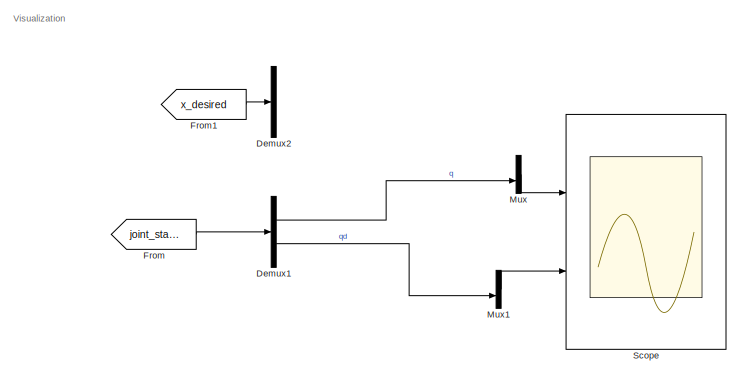
[diagram: root canvas - part 1/2, top left region]
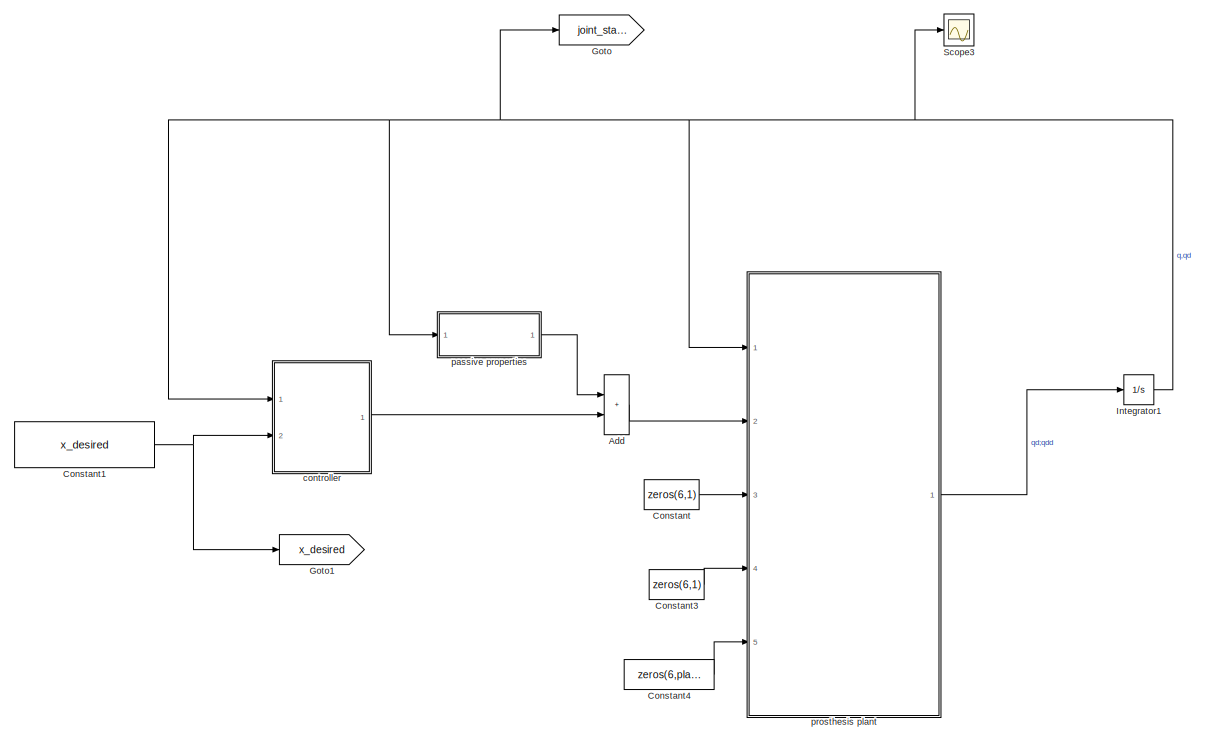
[diagram: root canvas - part 2/2, right side, full height]
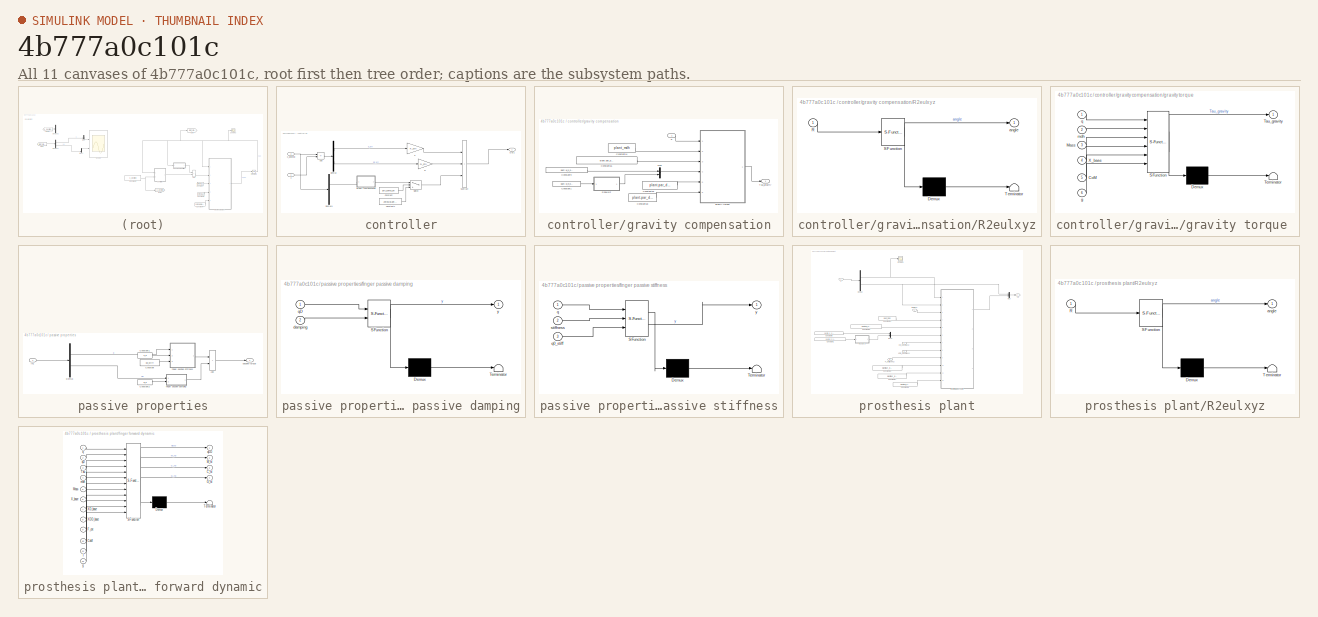
[diagram: thumbnail index - all 11 canvases of the model, root first then tree order]
MODEL slx_4b777a0c101c
KIND model
CONFIG AbsTol = auto
CONFIG EnableMultiTasking = off
CONFIG FixedStep = 1e-3
CONFIG InitFcn = plant = Dexmart_index;\nplant_mdh = mdh_struct_to_matrix(plant.mdh_ori,1);\n\n% init value for solver\nq_init = zeros(plant.nj,1);\nqD_init = zeros(plant.nj,1);\n\n% parameters for passive properties\nK_q = 1e1;% stiffness Nm/rad\nq0_stiff = [0;pi/6;pi/4;pi/6];\nD_q = 5; % Damping of joint\n\n% parameter for controller\ngrv_comp_on = 0; \nK_ctrl = 0;\nD_ctrl = 0;\n\n\n% desired x\n\nx_desired = [rand(plant.nj,1);zero...<+16ch>
CONFIG MaxStep = auto
CONFIG MinStep = auto
CONFIG RelTol = 1e-3
CONFIG SampleTimeConstraint = Unconstrained
CONFIG Solver = ode1
CONFIG SolverName = ode1
CONFIG StartTime = 0.0
CONFIG StopTime = inf
WORKSPACE source: external: MAT-File  (data not in archive)
BLOCK [Sum] Add
  IconShape = rectangular
  Ports = [2, 1]
BLOCK [Constant] Constant
  Value = zeros(6,1)
BLOCK [Constant] Constant1
  Value = x_desired
BLOCK [Constant] Constant3
  Value = zeros(6,1)
BLOCK [Constant] Constant4
  Value = zeros(6,plant.nj+2)
BLOCK [Demux] Demux1
  Outputs = [plant.nj,plant.nj]
  Ports = [1, 2]
BLOCK [Demux] Demux2
  Outputs = [plant.nj,plant.nj]
  Ports = [1, 2]
BLOCK [From] From
  GotoTag = joint_state
BLOCK [From] From1
  GotoTag = x_desired
BLOCK [Goto] Goto
  GotoTag = joint_state
BLOCK [Goto] Goto1
  GotoTag = x_desired
BLOCK [Integrator] Integrator1
  InitialCondition = [q_init;qD_init]
  Ports = [1, 1]
  WrappedStateLowerValue = -[pi,pi,pi,pi,1e4,1e4,1e4,1e4]
  WrappedStateUpperValue = [pi,pi,pi,pi,1e4,1e4,1e4,1e4]
BLOCK [Mux] Mux
  DisplayOption = bar
  Inputs = 2
  Ports = [2, 1]
BLOCK [Mux] Mux1
  DisplayOption = bar
  Inputs = 2
  Ports = [2, 1]
BLOCK [Scope] Scope
  Floating = off
  NumInputPorts = 2
  Ports = [2]
  ScopeSpecificationString = Simulink.scopes.TimeScopeBlockCfg('CurrentConfiguration', extmgr.ConfigurationSet(extmgr.Configuration('Core','General UI',true),extmgr.Configuration('Core','Source UI',true),extmgr.Configuration('Sources','WiredSimulink',true,'DataLoggingVariableName','ScopeData1'),extmgr.Configuration('Visuals','Time Domain',true,'SerializedDisplays',{struct('MinYLimReal','-0.10464','MaxYLimReal','0.89058','YLab...<+2060ch>
BLOCK [Scope] Scope3
  Floating = off
  NumInputPorts = 1
  Ports = [1]
  ScopeSpecificationString = Simulink.scopes.TimeScopeBlockCfg('CurrentConfiguration', extmgr.ConfigurationSet(extmgr.Configuration('Core','General UI',true),extmgr.Configuration('Core','Source UI',true),extmgr.Configuration('Sources','WiredSimulink',true,'DataLoggingVariableName','ScopeData2'),extmgr.Configuration('Visuals','Time Domain',true,'SerializedDisplays',{struct('MinYLimReal','-0.26832','MaxYLimReal','1.16476','YLab...<+1483ch>
BLOCK [SubSystem] controller
  Ports = [2, 1]
BLOCK [Sum] controller/Add
  IconShape = rectangular
  Inputs = +-
  Ports = [2, 1]
BLOCK [Constant] controller/Constant
  Value = grv_comp_on
BLOCK [Constant] controller/Constant1
  Value = zeros(plant.nj,1)
BLOCK [Gain] controller/D
  Gain = D_ctrl
BLOCK [Demux] controller/Demux
  Outputs = [plant.nj,plant.nj]
  Ports = [1, 2]
BLOCK [Demux] controller/Demux1
  Outputs = [plant.nj,plant.nj]
  Ports = [1, 2]
BLOCK [Gain] controller/K
  Gain = K_ctrl
BLOCK [Outport] controller/Out1
BLOCK [Sum] controller/Subtract
  IconShape = rectangular
  Inputs = +++
  Ports = [3, 1]
BLOCK [Switch] controller/Switch
  Criteria = u2 ~= 0
  InputSameDT = off
  SaturateOnIntegerOverflow = off
BLOCK [SubSystem] controller/gravity compensation
  Ports = [1, 1]
BLOCK [Constant] controller/gravity compensation/Constant1
  Value = plant.w_R_base
BLOCK [Constant] controller/gravity compensation/Constant14
  Value = plant_mdh
BLOCK [Constant] controller/gravity compensation/Constant15
  Value = plant.par_dyn_f.mass_all
BLOCK [Constant] controller/gravity compensation/Constant16
  Value = plant.par_dyn_f.com_all
BLOCK [Constant] controller/gravity compensation/Constant18
  Value = plant.par_dyn_f.g
BLOCK [Constant] controller/gravity compensation/Constant9
  Value = plant.w_p_base
BLOCK [Mux] controller/gravity compensation/Mux
  DisplayOption = bar
  Inputs = [3,3]
  Ports = [2, 1]
BLOCK [SubSystem] controller/gravity compensation/R2eulxyz
  ErrorFcn = Stateflow.Translate.translate
  PermitHierarchicalResolution = ExplicitOnly
  Ports = [1, 1]
  SFBlockType = MATLAB Function
  TreatAsAtomicUnit = on
BLOCK [Demux] controller/gravity compensation/R2eulxyz/ Demux 
  Outputs = 1
  Ports = [1, 1]
BLOCK [S-Function] controller/gravity compensation/R2eulxyz/ SFunction 
  EnableBusSupport = on
  FunctionName = sf_sfun
  PortCounts = [1 2]
  Ports = [1, 2]
  SFcnIsStateOwnerBlock = off
  SFunctionDeploymentMode = off
  Tag = Stateflow S-Function FD_example_2018b 6
BLOCK [Terminator] controller/gravity compensation/R2eulxyz/ Terminator 
BLOCK [Inport] controller/gravity compensation/R2eulxyz/R
BLOCK [Outport] controller/gravity compensation/R2eulxyz/angle
BLOCK [Outport] controller/gravity compensation/Tau_gravity
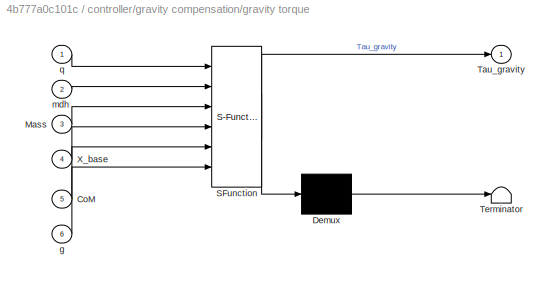
BLOCK [SubSystem] controller/gravity compensation/gravity torque 
  ErrorFcn = Stateflow.Translate.translate
  PermitHierarchicalResolution = ExplicitOnly
  Ports = [6, 1]
  SFBlockType = MATLAB Function
  TreatAsAtomicUnit = on
BLOCK [Demux] controller/gravity compensation/gravity torque / Demux 
  Outputs = 1
  Ports = [1, 1]
BLOCK [S-Function] controller/gravity compensation/gravity torque / SFunction 
  EnableBusSupport = on
  FunctionName = sf_sfun
  PortCounts = [6 2]
  Ports = [6, 2]
  SFcnIsStateOwnerBlock = off
  SFunctionDeploymentMode = off
  Tag = Stateflow S-Function FD_example_2018b 5
BLOCK [Terminator] controller/gravity compensation/gravity torque / Terminator 
BLOCK [Inport] controller/gravity compensation/gravity torque /CoM
  Port = 5
BLOCK [Inport] controller/gravity compensation/gravity torque /Mass
  Port = 3
BLOCK [Outport] controller/gravity compensation/gravity torque /Tau_gravity
BLOCK [Inport] controller/gravity compensation/gravity torque /X_base
  Port = 4
BLOCK [Inport] controller/gravity compensation/gravity torque /g
  Port = 6
BLOCK [Inport] controller/gravity compensation/gravity torque /mdh
  Port = 2
BLOCK [Inport] controller/gravity compensation/gravity torque /q
BLOCK [Inport] controller/gravity compensation/q
BLOCK [Inport] controller/x
BLOCK [Inport] controller/x_desired
  Port = 2
BLOCK [SubSystem] passive properties
  Ports = [1, 1]
BLOCK [Sum] passive properties/Add
  IconShape = rectangular
  Ports = [2, 1]
BLOCK [Constant] passive properties/Constant
  Value = q0_stiff
BLOCK [Constant] passive properties/Constant1
  Value = K_q
BLOCK [Constant] passive properties/Constant2
  Value = D_q
BLOCK [Demux] passive properties/Demux
  Outputs = [plant.nj,plant.nj]
  Ports = [1, 2]
BLOCK [Inport] passive properties/In1
BLOCK [SubSystem] passive properties/finger passive damping
  ErrorFcn = Stateflow.Translate.translate
  PermitHierarchicalResolution = ExplicitOnly
  Ports = [2, 1]
  SFBlockType = MATLAB Function
  TreatAsAtomicUnit = on
BLOCK [Demux] passive properties/finger passive damping/ Demux 
  Outputs = 1
  Ports = [1, 1]
BLOCK [S-Function] passive properties/finger passive damping/ SFunction 
  EnableBusSupport = on
  FunctionName = sf_sfun
  PortCounts = [2 2]
  Ports = [2, 2]
  SFcnIsStateOwnerBlock = off
  SFunctionDeploymentMode = off
  Tag = Stateflow S-Function FD_example_2018b 4
BLOCK [Terminator] passive properties/finger passive damping/ Terminator 
BLOCK [Inport] passive properties/finger passive damping/damping
  Port = 2
BLOCK [Inport] passive properties/finger passive damping/qD
BLOCK [Outport] passive properties/finger passive damping/y
BLOCK [SubSystem] passive properties/finger passive stiffness
  ErrorFcn = Stateflow.Translate.translate
  PermitHierarchicalResolution = ExplicitOnly
  Ports = [3, 1]
  SFBlockType = MATLAB Function
  TreatAsAtomicUnit = on
BLOCK [Demux] passive properties/finger passive stiffness/ Demux 
  Outputs = 1
  Ports = [1, 1]
BLOCK [S-Function] passive properties/finger passive stiffness/ SFunction 
  EnableBusSupport = on
  FunctionName = sf_sfun
  PortCounts = [3 2]
  Ports = [3, 2]
  SFcnIsStateOwnerBlock = off
  SFunctionDeploymentMode = off
  Tag = Stateflow S-Function FD_example_2018b 3
BLOCK [Terminator] passive properties/finger passive stiffness/ Terminator 
BLOCK [Inport] passive properties/finger passive stiffness/q
BLOCK [Inport] passive properties/finger passive stiffness/q0_stiff
  Port = 3
BLOCK [Inport] passive properties/finger passive stiffness/stiffness
  Port = 2
BLOCK [Outport] passive properties/finger passive stiffness/y
BLOCK [Outport] passive properties/passive torque
BLOCK [SubSystem] prosthesis plant
  Ports = [5, 1]
BLOCK [Constant] prosthesis plant/Constant1
  Value = plant.w_R_base
BLOCK [Constant] prosthesis plant/Constant14
  Value = plant_mdh
BLOCK [Constant] prosthesis plant/Constant15
  Value = plant.par_dyn_f.mass_all
BLOCK [Constant] prosthesis plant/Constant16
  Value = plant.par_dyn_f.com_all
BLOCK [Constant] prosthesis plant/Constant17
  Value = plant.par_dyn_f.inertia_all
BLOCK [Constant] prosthesis plant/Constant18
  Value = plant.par_dyn_f.g
BLOCK [Constant] prosthesis plant/Constant9
  Value = plant.w_p_base
BLOCK [Demux] prosthesis plant/Demux
  Outputs = [plant.nj,plant.nj]
  Ports = [1, 2]
BLOCK [Inport] prosthesis plant/F_ext [6xnj+2]
  Port = 5
BLOCK [Mux] prosthesis plant/Mux
  DisplayOption = bar
  Inputs = 2
  Ports = [2, 1]
BLOCK [Mux] prosthesis plant/Mux3
  DisplayOption = bar
  Inputs = [3,3]
  Ports = [2, 1]
BLOCK [SubSystem] prosthesis plant/R2eulxyz
  ErrorFcn = Stateflow.Translate.translate
  PermitHierarchicalResolution = ExplicitOnly
  Ports = [1, 1]
  SFBlockType = MATLAB Function
  TreatAsAtomicUnit = on
BLOCK [Demux] prosthesis plant/R2eulxyz/ Demux 
  Outputs = 1
  Ports = [1, 1]
BLOCK [S-Function] prosthesis plant/R2eulxyz/ SFunction 
  EnableBusSupport = on
  FunctionName = sf_sfun
  PortCounts = [1 2]
  Ports = [1, 2]
  SFcnIsStateOwnerBlock = off
  SFunctionDeploymentMode = off
  Tag = Stateflow S-Function FD_example_2018b 7
BLOCK [Terminator] prosthesis plant/R2eulxyz/ Terminator 
BLOCK [Inport] prosthesis plant/R2eulxyz/R
BLOCK [Outport] prosthesis plant/R2eulxyz/angle
BLOCK [Scope] prosthesis plant/Scope3
  Floating = off
  NumInputPorts = 1
  Ports = [1]
  ScopeSpecificationString = Simulink.scopes.TimeScopeBlockCfg('CurrentConfiguration', extmgr.ConfigurationSet(extmgr.Configuration('Core','General UI',true),extmgr.Configuration('Core','Source UI',true),extmgr.Configuration('Sources','WiredSimulink',true,'DataLoggingVariableName','ScopeData1'),extmgr.Configuration('Visuals','Time Domain',true,'SerializedDisplays',{struct('MinYLimReal','-11.70158','MaxYLimReal','40.40895','YL...<+1515ch>
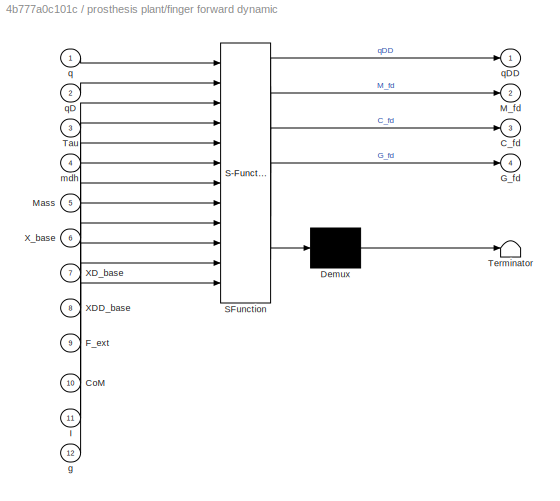
BLOCK [SubSystem] prosthesis plant/finger forward dynamic
  ErrorFcn = Stateflow.Translate.translate
  PermitHierarchicalResolution = ExplicitOnly
  Ports = [12, 4]
  SFBlockType = MATLAB Function
  TreatAsAtomicUnit = on
BLOCK [Demux] prosthesis plant/finger forward dynamic/ Demux 
  Outputs = 1
  Ports = [1, 1]
BLOCK [S-Function] prosthesis plant/finger forward dynamic/ SFunction 
  EnableBusSupport = on
  FunctionName = sf_sfun
  PortCounts = [12 5]
  Ports = [12, 5]
  SFcnIsStateOwnerBlock = off
  SFunctionDeploymentMode = off
  Tag = Stateflow S-Function FD_example_2018b 2
BLOCK [Terminator] prosthesis plant/finger forward dynamic/ Terminator 
BLOCK [Outport] prosthesis plant/finger forward dynamic/C_fd
  Port = 3
BLOCK [Inport] prosthesis plant/finger forward dynamic/CoM
  Port = 10
BLOCK [Inport] prosthesis plant/finger forward dynamic/F_ext
  Port = 9
BLOCK [Outport] prosthesis plant/finger forward dynamic/G_fd
  Port = 4
BLOCK [Inport] prosthesis plant/finger forward dynamic/I
  Port = 11
BLOCK [Outport] prosthesis plant/finger forward dynamic/M_fd
  Port = 2
BLOCK [Inport] prosthesis plant/finger forward dynamic/Mass
  Port = 5
BLOCK [Inport] prosthesis plant/finger forward dynamic/Tau
  Port = 3
BLOCK [Inport] prosthesis plant/finger forward dynamic/XDD_base
  Port = 8
BLOCK [Inport] prosthesis plant/finger forward dynamic/XD_base
  Port = 7
BLOCK [Inport] prosthesis plant/finger forward dynamic/X_base
  Port = 6
BLOCK [Inport] prosthesis plant/finger forward dynamic/g
  Port = 12
BLOCK [Inport] prosthesis plant/finger forward dynamic/mdh
  Port = 4
BLOCK [Inport] prosthesis plant/finger forward dynamic/q
BLOCK [Inport] prosthesis plant/finger forward dynamic/qD
  Port = 2
BLOCK [Outport] prosthesis plant/finger forward dynamic/qDD
BLOCK [Inport] prosthesis plant/tau [njx1]
  Port = 2
BLOCK [Inport] prosthesis plant/x
BLOCK [Inport] prosthesis plant/xDD_base [6x1]
  Port = 4
BLOCK [Inport] prosthesis plant/xD_base [6x1]
  Port = 3
BLOCK [Outport] prosthesis plant/xd
ANNOTATION (root): Visualization
LINE Add:1 -> prosthesis plant:2
NET Constant1:1 -> Goto1:1, controller:2
LINE Constant3:1 -> prosthesis plant:4
LINE Constant4:1 -> prosthesis plant:5
LINE Constant:1 -> prosthesis plant:3
LINE Demux1:1 -> Mux:2
LINE Demux1:2 -> Mux1:2
LINE From1:1 -> Demux2:1
LINE From:1 -> Demux1:1
NET Integrator1:1 -> Goto:1, Scope3:1, controller:1, passive properties:1, prosthesis plant:1
LINE Mux1:1 -> Scope:2
LINE Mux:1 -> Scope:1
LINE controller/Add:1 -> controller/Demux:1
LINE controller/Constant1:1 -> controller/Switch:3
LINE controller/Constant:1 -> controller/Switch:2
LINE controller/D:1 -> controller/Subtract:2
LINE controller/Demux1:1 -> controller/gravity compensation:1
LINE controller/Demux:1 -> controller/K:1
LINE controller/Demux:2 -> controller/D:1
LINE controller/K:1 -> controller/Subtract:1
LINE controller/Subtract:1 -> controller/Out1:1
LINE controller/Switch:1 -> controller/Subtract:3
LINE controller/gravity compensation/Constant14:1 -> controller/gravity compensation/gravity torque :2
LINE controller/gravity compensation/Constant15:1 -> controller/gravity compensation/gravity torque :3
LINE controller/gravity compensation/Constant16:1 -> controller/gravity compensation/gravity torque :5
LINE controller/gravity compensation/Constant18:1 -> controller/gravity compensation/gravity torque :6
LINE controller/gravity compensation/Constant1:1 -> controller/gravity compensation/R2eulxyz:1
LINE controller/gravity compensation/Constant9:1 -> controller/gravity compensation/Mux:1
LINE controller/gravity compensation/Mux:1 -> controller/gravity compensation/gravity torque :4
LINE controller/gravity compensation/R2eulxyz:1 -> controller/gravity compensation/Mux:2
LINE controller/gravity compensation/gravity torque :1 -> controller/gravity compensation/Tau_gravity:1
LINE controller/gravity compensation/q:1 -> controller/gravity compensation/gravity torque :1
LINE controller/gravity compensation:1 -> controller/Switch:1
LINE controller/x:1 -> controller/Add:2
NET controller/x_desired:1 -> controller/Add:1, controller/Demux1:1
LINE controller:1 -> Add:2
LINE passive properties/Add:1 -> passive properties/passive torque:1
LINE passive properties/Constant1:1 -> passive properties/finger passive stiffness:2
LINE passive properties/Constant2:1 -> passive properties/finger passive damping:2
LINE passive properties/Constant:1 -> passive properties/finger passive stiffness:3
LINE passive properties/Demux:1 -> passive properties/finger passive stiffness:1
LINE passive properties/Demux:2 -> passive properties/finger passive damping:1
LINE passive properties/In1:1 -> passive properties/Demux:1
LINE passive properties/finger passive damping:1 -> passive properties/Add:2
LINE passive properties/finger passive stiffness:1 -> passive properties/Add:1
LINE passive properties:1 -> Add:1
LINE prosthesis plant/Constant14:1 -> prosthesis plant/finger forward dynamic:4
LINE prosthesis plant/Constant15:1 -> prosthesis plant/finger forward dynamic:5
LINE prosthesis plant/Constant16:1 -> prosthesis plant/finger forward dynamic:10
LINE prosthesis plant/Constant17:1 -> prosthesis plant/finger forward dynamic:11
LINE prosthesis plant/Constant18:1 -> prosthesis plant/finger forward dynamic:12
LINE prosthesis plant/Constant1:1 -> prosthesis plant/R2eulxyz:1
LINE prosthesis plant/Constant9:1 -> prosthesis plant/Mux3:1
NET prosthesis plant/Demux:1 -> prosthesis plant/Scope3:1, prosthesis plant/finger forward dynamic:1
NET prosthesis plant/Demux:2 -> prosthesis plant/Mux:1, prosthesis plant/finger forward dynamic:2
LINE prosthesis plant/F_ext [6xnj+2]:1 -> prosthesis plant/finger forward dynamic:9
LINE prosthesis plant/Mux3:1 -> prosthesis plant/finger forward dynamic:6
LINE prosthesis plant/Mux:1 -> prosthesis plant/xd:1
LINE prosthesis plant/R2eulxyz:1 -> prosthesis plant/Mux3:2
LINE prosthesis plant/finger forward dynamic:1 -> prosthesis plant/Mux:2
LINE prosthesis plant/tau [njx1]:1 -> prosthesis plant/finger forward dynamic:3
LINE prosthesis plant/x:1 -> prosthesis plant/Demux:1
LINE prosthesis plant/xDD_base [6x1]:1 -> prosthesis plant/finger forward dynamic:8
LINE prosthesis plant/xD_base [6x1]:1 -> prosthesis plant/finger forward dynamic:7
LINE prosthesis plant:1 -> Integrator1:1
note: NET lines group one-source signal fan-out (src -> all destinations, sorted); 1:1 wires keep LINE
CHART prosthesis plant/finger forward dynamic states=1 transitions=1
  STATE_LABEL 'eML_blk_kernel()'
  STATE_LABEL 'SCRIPT:\n% recursive Newton-Euler method to compute inverse dynamic with mdh\n% parameters\n% Input:\n%     q,qD:             [n_qx1] joint states\n%     Tau               [n_q] joint torque\n%     mdh:              [n_q+1x4] in sequence of [alpha,a,theta,d] To be\n%                       noted that the theta should exclude from mdh parameters \n%     Mass:             [n_q+1] mass vector. the first mass ...<+2492ch>'
CHART passive properties/finger passive stiffness states=1 transitions=1
  STATE_LABEL 'eML_blk_kernel()'
  STATE_LABEL 'SCRIPT:\nfunction y = fcn(q,stiffness,q0_stiff)\n\ny = -stiffness.*(q-q0_stiff);\n'
CHART passive properties/finger passive damping states=1 transitions=1
  STATE_LABEL 'eML_blk_kernel()'
  STATE_LABEL 'SCRIPT:\nfunction y = fcn(qD,damping)\n\ny = -damping.*qD;\n'
CHART controller/gravity compensation/gravity torque  states=1 transitions=1
  STATE_LABEL 'eML_blk_kernel()'
  STATE_LABEL 'SCRIPT:\nfunction Tau_gravity = fcn(q,mdh, Mass, X_base, CoM, g)\n\nTau_gravity = invdyn_ne_mdh_all_fext_gravity(q,mdh, Mass, X_base, CoM, g);\n'
CHART controller/gravity compensation/R2eulxyz states=1 transitions=1
  STATE_LABEL 'eML_blk_kernel()'
  STATE_LABEL 'SCRIPT:\nfunction angle = fcn(R)\n\nangle = R2euler_XYZ(R);\n'
CHART prosthesis plant/R2eulxyz states=1 transitions=1
  STATE_LABEL 'eML_blk_kernel()'
  STATE_LABEL 'SCRIPT:\nfunction angle = fcn(R)\n\nangle = R2euler_XYZ(R);\n'
